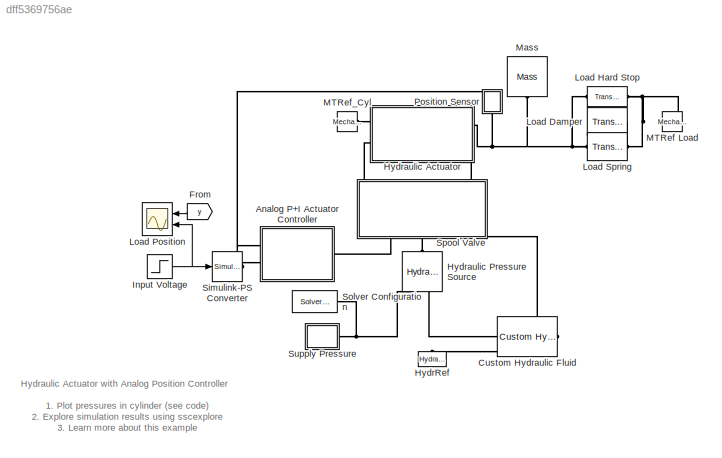
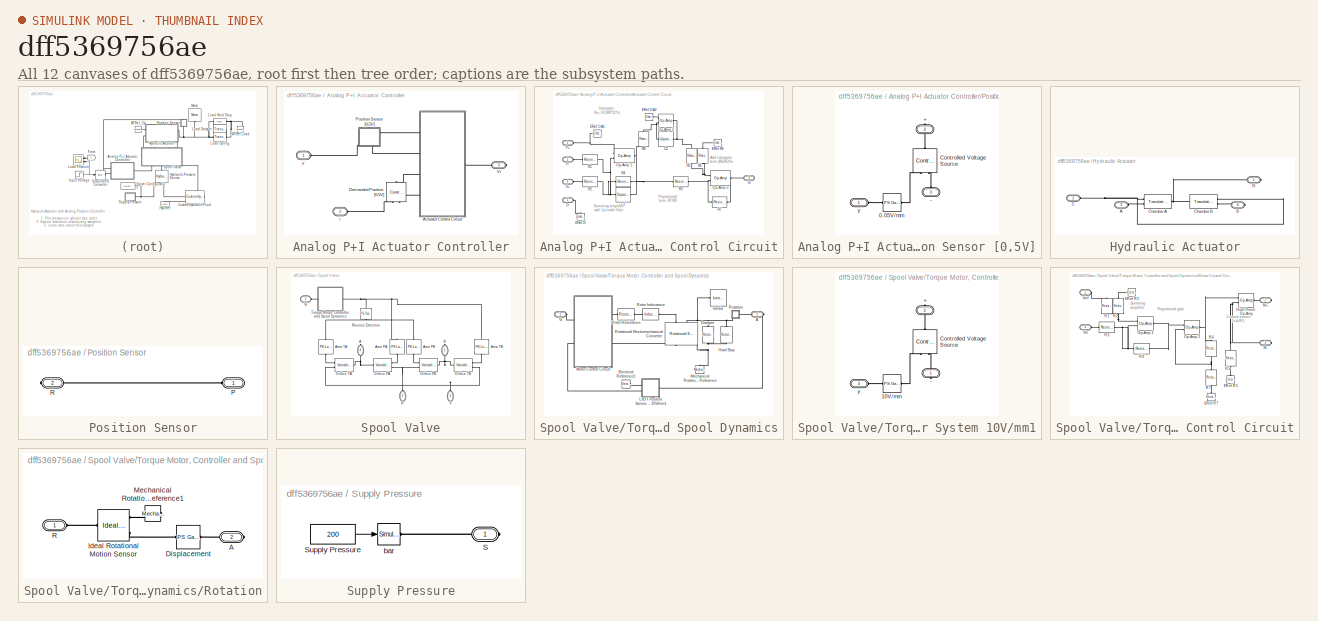
[diagram: thumbnail index - all 12 canvases of the model, root first then tree order]
MODEL slx_dff5369756ae
KIND model
CONFIG AbsTol = 1e-3
CONFIG EnableMultiTasking = on
CONFIG FixedStep = auto
CONFIG MaxStep = 0.02
CONFIG MinStep = auto
CONFIG RelTol = 1e-3
CONFIG SampleTimeConstraint = Unconstrained
CONFIG Solver = VariableStepAuto
CONFIG SolverName = VariableStepAuto
CONFIG StartTime = 0.0
CONFIG StopTime = 10
BLOCK [SubSystem] Analog P+I Actuator Controller
  NameLocation = top
  Ports = [0, 0, 0, 0, 0, 2, 1]
  RequestExecContextInheritance = off
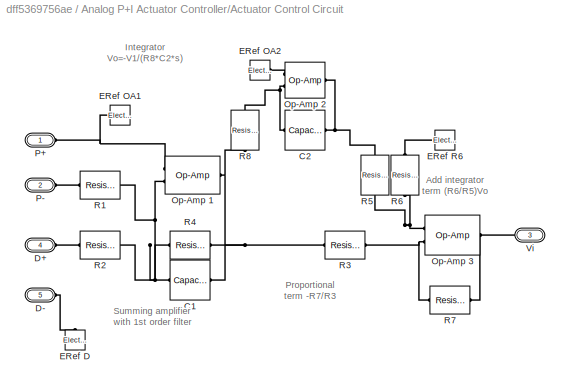
BLOCK [SubSystem] Analog P+I Actuator Controller/Actuator Control Circuit
  Ports = [0, 0, 0, 0, 0, 4, 1]
  RequestExecContextInheritance = off
  Tag = PublishSubsystem
BLOCK [Reference] Analog P+I Actuator Controller/Actuator Control Circuit/C1  REF=fl_lib/Electrical/Electrical Elements/Capacitor
  Ports = [0, 0, 0, 0, 0, 1, 1]
  SourceBlock = fl_lib/Electrical/Electrical Elements/Capacitor
  SourceProductName = Foundation Library
  SourceType = Capacitor
BLOCK [Reference] Analog P+I Actuator Controller/Actuator Control Circuit/C2  REF=fl_lib/Electrical/Electrical Elements/Capacitor
  Ports = [0, 0, 0, 0, 0, 1, 1]
  SourceBlock = fl_lib/Electrical/Electrical Elements/Capacitor
  SourceProductName = Foundation Library
  SourceType = Capacitor
BLOCK [PMIOPort] Analog P+I Actuator Controller/Actuator Control Circuit/D+
  Port = 4
  Side = Left
BLOCK [PMIOPort] Analog P+I Actuator Controller/Actuator Control Circuit/D-
  Port = 5
  Side = Left
BLOCK [Reference] Analog P+I Actuator Controller/Actuator Control Circuit/ERef D  REF=fl_lib/Electrical/Electrical Elements/Electrical Reference
  NameLocation = right
  Ports = [0, 0, 0, 0, 0, 1]
  SourceBlock = fl_lib/Electrical/Electrical Elements/Electrical Reference
  SourceProductName = Foundation Library
  SourceType = Electrical Reference
BLOCK [Reference] Analog P+I Actuator Controller/Actuator Control Circuit/ERef OA1  REF=fl_lib/Electrical/Electrical Elements/Electrical Reference
  NameLocation = top
  Ports = [0, 0, 0, 0, 0, 1]
  SourceBlock = fl_lib/Electrical/Electrical Elements/Electrical Reference
  SourceProductName = Foundation Library
  SourceType = Electrical Reference
BLOCK [Reference] Analog P+I Actuator Controller/Actuator Control Circuit/ERef OA2  REF=fl_lib/Electrical/Electrical Elements/Electrical Reference
  NameLocation = top
  Ports = [0, 0, 0, 0, 0, 1]
  SourceBlock = fl_lib/Electrical/Electrical Elements/Electrical Reference
  SourceProductName = Foundation Library
  SourceType = Electrical Reference
BLOCK [Reference] Analog P+I Actuator Controller/Actuator Control Circuit/ERef R6  REF=fl_lib/Electrical/Electrical Elements/Electrical Reference
  Ports = [0, 0, 0, 0, 0, 1]
  SourceBlock = fl_lib/Electrical/Electrical Elements/Electrical Reference
  SourceProductName = Foundation Library
  SourceType = Electrical Reference
BLOCK [Reference] Analog P+I Actuator Controller/Actuator Control Circuit/Op-Amp 1  REF=fl_lib/Electrical/Electrical Elements/Op-Amp
  Ports = [0, 0, 0, 0, 0, 2, 1]
  SourceBlock = fl_lib/Electrical/Electrical Elements/Op-Amp
  SourceProductName = Foundation Library
  SourceType = Op-Amp
BLOCK [Reference] Analog P+I Actuator Controller/Actuator Control Circuit/Op-Amp 2  REF=fl_lib/Electrical/Electrical Elements/Op-Amp
  NameLocation = top
  Ports = [0, 0, 0, 0, 0, 2, 1]
  SourceBlock = fl_lib/Electrical/Electrical Elements/Op-Amp
  SourceProductName = Foundation Library
  SourceType = Op-Amp
BLOCK [Reference] Analog P+I Actuator Controller/Actuator Control Circuit/Op-Amp 3  REF=fl_lib/Electrical/Electrical Elements/Op-Amp
  Ports = [0, 0, 0, 0, 0, 2, 1]
  SourceBlock = fl_lib/Electrical/Electrical Elements/Op-Amp
  SourceProductName = Foundation Library
  SourceType = Op-Amp
BLOCK [PMIOPort] Analog P+I Actuator Controller/Actuator Control Circuit/P+
  Side = Left
BLOCK [PMIOPort] Analog P+I Actuator Controller/Actuator Control Circuit/P-
  Port = 2
  Side = Left
BLOCK [Reference] Analog P+I Actuator Controller/Actuator Control Circuit/R1  REF=fl_lib/Electrical/Electrical Elements/Resistor
  Ports = [0, 0, 0, 0, 0, 1, 1]
  SourceBlock = fl_lib/Electrical/Electrical Elements/Resistor
  SourceProductName = Foundation Library
  SourceType = Resistor
BLOCK [Reference] Analog P+I Actuator Controller/Actuator Control Circuit/R2  REF=fl_lib/Electrical/Electrical Elements/Resistor
  Ports = [0, 0, 0, 0, 0, 1, 1]
  SourceBlock = fl_lib/Electrical/Electrical Elements/Resistor
  SourceProductName = Foundation Library
  SourceType = Resistor
BLOCK [Reference] Analog P+I Actuator Controller/Actuator Control Circuit/R3  REF=fl_lib/Electrical/Electrical Elements/Resistor
  Ports = [0, 0, 0, 0, 0, 1, 1]
  SourceBlock = fl_lib/Electrical/Electrical Elements/Resistor
  SourceProductName = Foundation Library
  SourceType = Resistor
BLOCK [Reference] Analog P+I Actuator Controller/Actuator Control Circuit/R4  REF=fl_lib/Electrical/Electrical Elements/Resistor
  Ports = [0, 0, 0, 0, 0, 1, 1]
  SourceBlock = fl_lib/Electrical/Electrical Elements/Resistor
  SourceProductName = Foundation Library
  SourceType = Resistor
BLOCK [Reference] Analog P+I Actuator Controller/Actuator Control Circuit/R5  REF=fl_lib/Electrical/Electrical Elements/Resistor
  NameLocation = left
  Ports = [0, 0, 0, 0, 0, 1, 1]
  SourceBlock = fl_lib/Electrical/Electrical Elements/Resistor
  SourceProductName = Foundation Library
  SourceType = Resistor
BLOCK [Reference] Analog P+I Actuator Controller/Actuator Control Circuit/R6  REF=fl_lib/Electrical/Electrical Elements/Resistor
  NameLocation = right
  Ports = [0, 0, 0, 0, 0, 1, 1]
  SourceBlock = fl_lib/Electrical/Electrical Elements/Resistor
  SourceProductName = Foundation Library
  SourceType = Resistor
BLOCK [Reference] Analog P+I Actuator Controller/Actuator Control Circuit/R7  REF=fl_lib/Electrical/Electrical Elements/Resistor
  Ports = [0, 0, 0, 0, 0, 1, 1]
  SourceBlock = fl_lib/Electrical/Electrical Elements/Resistor
  SourceProductName = Foundation Library
  SourceType = Resistor
BLOCK [Reference] Analog P+I Actuator Controller/Actuator Control Circuit/R8  REF=fl_lib/Electrical/Electrical Elements/Resistor
  NameLocation = left
  Ports = [0, 0, 0, 0, 0, 1, 1]
  SourceBlock = fl_lib/Electrical/Electrical Elements/Resistor
  SourceProductName = Foundation Library
  SourceType = Resistor
BLOCK [PMIOPort] Analog P+I Actuator Controller/Actuator Control Circuit/Vi
  Port = 3
  Side = Right
BLOCK [Reference] Analog P+I Actuator Controller/Demanded Position [0,5V]  REF=fl_lib/Electrical/Electrical Sources/Controlled Voltage
Source
  NameLocation = left
  Ports = [0, 0, 0, 0, 0, 1, 2]
  SourceBlock = fl_lib/Electrical/Electrical Sources/Controlled Voltage\nSource
  SourceProductName = Foundation Library
  SourceType = Controlled Voltage\nSource
BLOCK [SubSystem] Analog P+I Actuator Controller/Position Sensor [0,5V]
  NameLocation = left
  Ports = [0, 0, 0, 0, 0, 2, 1]
  RequestExecContextInheritance = off
BLOCK [PMIOPort] Analog P+I Actuator Controller/Position Sensor [0,5V]/+
  NameLocation = right
  Port = 2
  Side = Right
BLOCK [PMIOPort] Analog P+I Actuator Controller/Position Sensor [0,5V]/-
  NameLocation = right
  Port = 3
  Side = Left
BLOCK [Reference] Analog P+I Actuator Controller/Position Sensor [0,5V]/0.05V//mm  REF=fl_lib/Physical Signals/Functions/PS Gain
  Ports = [0, 0, 0, 0, 0, 1, 1]
  SourceBlock = fl_lib/Physical Signals/Functions/PS Gain
  SourceProductName = Foundation Library
  SourceType = PS Gain
BLOCK [Reference] Analog P+I Actuator Controller/Position Sensor [0,5V]/Controlled Voltage Source  REF=fl_lib/Electrical/Electrical Sources/Controlled Voltage
Source
  NameLocation = right
  Ports = [0, 0, 0, 0, 0, 1, 2]
  SourceBlock = fl_lib/Electrical/Electrical Sources/Controlled Voltage\nSource
  SourceProductName = Foundation Library
  SourceType = Controlled Voltage\nSource
BLOCK [PMIOPort] Analog P+I Actuator Controller/Position Sensor [0,5V]/y
  Side = Left
BLOCK [PMIOPort] Analog P+I Actuator Controller/Vi
  Port = 3
  Side = Right
BLOCK [PMIOPort] Analog P+I Actuator Controller/r
  Port = 2
  Side = Left
  Tag = PMCPort
BLOCK [PMIOPort] Analog P+I Actuator Controller/y
  Side = Left
  Tag = PMCPort
BLOCK [Reference] Custom Hydraulic Fluid  REF=fl_lib/Hydraulic/Hydraulic Utilities/Custom Hydraulic
Fluid
  NameLocation = top
  Ports = [0, 0, 0, 0, 0, 0, 1]
  SourceBlock = fl_lib/Hydraulic/Hydraulic Utilities/Custom Hydraulic\nFluid
  SourceProductName = Foundation Library
  SourceType = Custom Hydraulic\nFluid
BLOCK [From] From
  GotoTag = y
  NameLocation = top
  TagVisibility = global
BLOCK [Reference] HydrRef  REF=fl_lib/Hydraulic/Hydraulic Elements/Hydraulic Reference
  NameLocation = right
  Ports = [0, 0, 0, 0, 0, 1]
  SourceBlock = fl_lib/Hydraulic/Hydraulic Elements/Hydraulic Reference
  SourceProductName = Foundation Library
  SourceType = Hydraulic Reference
BLOCK [SubSystem] Hydraulic Actuator
  NameLocation = top
  Ports = [0, 0, 0, 0, 0, 2, 2]
  RequestExecContextInheritance = off
BLOCK [PMIOPort] Hydraulic Actuator/A
  Port = 3
  Side = Left
BLOCK [PMIOPort] Hydraulic Actuator/B
  Port = 4
  Side = Right
BLOCK [PMIOPort] Hydraulic Actuator/C
  NameLocation = top
  Port = 2
  Side = Left
BLOCK [Reference] Hydraulic Actuator/Chamber A  REF=fl_lib/Hydraulic/Hydraulic Elements/Translational
Hydro-Mechanical
Converter
  Ports = [0, 0, 0, 0, 0, 2, 1]
  SourceBlock = fl_lib/Hydraulic/Hydraulic Elements/Translational\nHydro-Mechanical\nConverter
  SourceProductName = Foundation Library
  SourceType = Translational\nHydro-Mechanical\nConverter
BLOCK [Reference] Hydraulic Actuator/Chamber B  REF=fl_lib/Hydraulic/Hydraulic Elements/Translational
Hydro-Mechanical
Converter
  Ports = [0, 0, 0, 0, 0, 2, 1]
  SourceBlock = fl_lib/Hydraulic/Hydraulic Elements/Translational\nHydro-Mechanical\nConverter
  SourceProductName = Foundation Library
  SourceType = Translational\nHydro-Mechanical\nConverter
BLOCK [PMIOPort] Hydraulic Actuator/R
  Side = Right
BLOCK [Reference] Hydraulic Pressure Source  REF=fl_lib/Hydraulic/Hydraulic Sources/Hydraulic Pressure
Source
  NameLocation = left
  Ports = [0, 0, 0, 0, 0, 1, 2]
  SourceBlock = fl_lib/Hydraulic/Hydraulic Sources/Hydraulic Pressure\nSource
  SourceProductName = Foundation Library
  SourceType = Hydraulic Pressure\nSource
BLOCK [Step] Input Voltage
  After = 3.0
  Before = 2.5
  SampleTime = 0
  Time = 0.2
BLOCK [Reference] Load Damper  REF=fl_lib/Mechanical/Translational
Elements/Translational Damper
  Ports = [0, 0, 0, 0, 0, 1, 1]
  SourceBlock = fl_lib/Mechanical/Translational\nElements/Translational Damper
  SourceProductName = Foundation Library
  SourceType = Translational Damper
BLOCK [Reference] Load Hard Stop  REF=fl_lib/Mechanical/Translational
Elements/Translational Hard
Stop
  NameLocation = top
  Ports = [0, 0, 0, 0, 0, 1, 1]
  SourceBlock = fl_lib/Mechanical/Translational\nElements/Translational Hard\nStop
  SourceProductName = Foundation Library
  SourceType = Translational Hard\nStop
BLOCK [Scope] Load Position
  Floating = off
  NameLocation = top
  NumInputPorts = 2
  Ports = [2]
  ScopeSpecificationString = Simulink.scopes.TimeScopeBlockCfg('CurrentConfiguration', extmgr.ConfigurationSet(extmgr.Configuration('Core','General UI',true,'FigureColor',[0.501960784313725 0.501960784313725 0.501960784313725]),extmgr.Configuration('Core','Source UI',true),extmgr.Configuration('Sources','WiredSimulink',true,'DataLoggingVariableName','ScopeData3','DataLoggingSaveFormat','Array','DataLoggingLimitDataPoints',tru...<+3857ch>
  Tag = PublishScope
BLOCK [Reference] Load Spring  REF=fl_lib/Mechanical/Translational
Elements/Translational Spring
  Ports = [0, 0, 0, 0, 0, 1, 1]
  SourceBlock = fl_lib/Mechanical/Translational\nElements/Translational Spring
  SourceProductName = Foundation Library
  SourceType = Translational Spring
BLOCK [Reference] MTRef Load  REF=fl_lib/Mechanical/Translational
Elements/Mechanical
Translational
Reference
  NameLocation = top
  Ports = [0, 0, 0, 0, 0, 1]
  SourceBlock = fl_lib/Mechanical/Translational\nElements/Mechanical\nTranslational\nReference
  SourceProductName = Foundation Library
  SourceType = Mechanical\nTranslational\nReference
BLOCK [Reference] MTRef_Cyl  REF=fl_lib/Mechanical/Translational
Elements/Mechanical
Translational
Reference
  Ports = [0, 0, 0, 0, 0, 1]
  SourceBlock = fl_lib/Mechanical/Translational\nElements/Mechanical\nTranslational\nReference
  SourceProductName = Foundation Library
  SourceType = Mechanical\nTranslational\nReference
BLOCK [Reference] Mass  REF=fl_lib/Mechanical/Translational
Elements/Mass
  NameLocation = right
  Ports = [0, 0, 0, 0, 0, 1]
  SourceBlock = fl_lib/Mechanical/Translational\nElements/Mass
  SourceProductName = Foundation Library
  SourceType = Mass
BLOCK [SubSystem] Position Sensor
  NameLocation = right
  Ports = [0, 0, 0, 0, 0, 1, 1]
  RequestExecContextInheritance = off
BLOCK [PMIOPort] Position Sensor/P
  NameLocation = top
  Side = Left
BLOCK [PMIOPort] Position Sensor/R
  Port = 2
  Side = Right
BLOCK [Reference] Simulink-PS Converter  REF=nesl_utility/Simulink-PS
Converter
  Ports = [1, 0, 0, 0, 0, 0, 1]
  SourceBlock = nesl_utility/Simulink-PS\nConverter
  SourceProductName = Utilities
  SourceType = Simulink-PS\nConverter
BLOCK [Reference] Solver Configuration  REF=nesl_utility/Solver
Configuration
  Ports = [0, 0, 0, 0, 0, 0, 1]
  SourceBlock = nesl_utility/Solver\nConfiguration
  SourceProductName = Utilities
  SourceType = Solver\nConfiguration
BLOCK [SubSystem] Spool Valve
  NameLocation = right
  Ports = [0, 0, 0, 0, 0, 3, 2]
  RequestExecContextInheritance = off
  Tag = PublishSubsystem
BLOCK [PMIOPort] Spool Valve/A
  NameLocation = right
  Port = 4
  Side = Right
  Tag = PMCPort
BLOCK [Reference] Spool Valve/Area PA  REF=fl_lib/Physical Signals/Lookup Tables/PS Lookup Table (1D)
  NameLocation = left
  Ports = [0, 0, 0, 0, 0, 1, 1]
  SourceBlock = fl_lib/Physical Signals/Lookup Tables/PS Lookup Table (1D)
  SourceProductName = Foundation Library
  SourceType = PS Lookup Table (1D)
BLOCK [Reference] Spool Valve/Area PB  REF=fl_lib/Physical Signals/Lookup Tables/PS Lookup Table (1D)
  NameLocation = right
  Ports = [0, 0, 0, 0, 0, 1, 1]
  SourceBlock = fl_lib/Physical Signals/Lookup Tables/PS Lookup Table (1D)
  SourceProductName = Foundation Library
  SourceType = PS Lookup Table (1D)
BLOCK [Reference] Spool Valve/Area TA  REF=fl_lib/Physical Signals/Lookup Tables/PS Lookup Table (1D)
  NameLocation = right
  Ports = [0, 0, 0, 0, 0, 1, 1]
  SourceBlock = fl_lib/Physical Signals/Lookup Tables/PS Lookup Table (1D)
  SourceProductName = Foundation Library
  SourceType = PS Lookup Table (1D)
BLOCK [Reference] Spool Valve/Area TB  REF=fl_lib/Physical Signals/Lookup Tables/PS Lookup Table (1D)
  NameLocation = left
  Ports = [0, 0, 0, 0, 0, 1, 1]
  SourceBlock = fl_lib/Physical Signals/Lookup Tables/PS Lookup Table (1D)
  SourceProductName = Foundation Library
  SourceType = PS Lookup Table (1D)
BLOCK [PMIOPort] Spool Valve/B
  NameLocation = right
  Port = 5
  Side = Right
  Tag = PMCPort
BLOCK [Reference] Spool Valve/Orifice PA  REF=fl_lib/Hydraulic/Hydraulic Elements/Variable Area
Hydraulic Orifice
  Ports = [0, 0, 0, 0, 0, 2, 1]
  SourceBlock = fl_lib/Hydraulic/Hydraulic Elements/Variable Area\nHydraulic Orifice
  SourceProductName = Foundation Library
  SourceType = Variable Area\nHydraulic Orifice
BLOCK [Reference] Spool Valve/Orifice PB  REF=fl_lib/Hydraulic/Hydraulic Elements/Variable Area
Hydraulic Orifice
  Ports = [0, 0, 0, 0, 0, 2, 1]
  SourceBlock = fl_lib/Hydraulic/Hydraulic Elements/Variable Area\nHydraulic Orifice
  SourceProductName = Foundation Library
  SourceType = Variable Area\nHydraulic Orifice
BLOCK [Reference] Spool Valve/Orifice TA  REF=fl_lib/Hydraulic/Hydraulic Elements/Variable Area
Hydraulic Orifice
  Ports = [0, 0, 0, 0, 0, 2, 1]
  SourceBlock = fl_lib/Hydraulic/Hydraulic Elements/Variable Area\nHydraulic Orifice
  SourceProductName = Foundation Library
  SourceType = Variable Area\nHydraulic Orifice
BLOCK [Reference] Spool Valve/Orifice TB  REF=fl_lib/Hydraulic/Hydraulic Elements/Variable Area
Hydraulic Orifice
  Ports = [0, 0, 0, 0, 0, 2, 1]
  SourceBlock = fl_lib/Hydraulic/Hydraulic Elements/Variable Area\nHydraulic Orifice
  SourceProductName = Foundation Library
  SourceType = Variable Area\nHydraulic Orifice
BLOCK [PMIOPort] Spool Valve/P
  NameLocation = right
  Port = 2
  Side = Left
  Tag = PMCPort
BLOCK [Reference] Spool Valve/Reverse Direction  REF=fl_lib/Physical Signals/Functions/PS Gain
  NameLocation = right
  Ports = [0, 0, 0, 0, 0, 1, 1]
  SourceBlock = fl_lib/Physical Signals/Functions/PS Gain
  SourceProductName = Foundation Library
  SourceType = PS Gain
BLOCK [PMIOPort] Spool Valve/T
  NameLocation = right
  Port = 3
  Side = Left
  Tag = PMCPort
BLOCK [SubSystem] Spool Valve/Torque Motor, Controller and Spool Dynamics
  Ports = [0, 0, 0, 0, 0, 1, 1]
  RequestExecContextInheritance = off
BLOCK [PMIOPort] Spool Valve/Torque Motor, Controller and Spool Dynamics/A
  Port = 2
  Side = Right
BLOCK [Reference] Spool Valve/Torque Motor, Controller and Spool Dynamics/Damper  REF=fl_lib/Mechanical/Rotational Elements/Rotational Damper
  NameLocation = right
  Ports = [0, 0, 0, 0, 0, 1, 1]
  SourceBlock = fl_lib/Mechanical/Rotational Elements/Rotational Damper
  SourceProductName = Foundation Library
  SourceType = Rotational Damper
BLOCK [Reference] Spool Valve/Torque Motor, Controller and Spool Dynamics/Electrical Reference1  REF=fl_lib/Electrical/Electrical Elements/Electrical Reference
  NameLocation = top
  Ports = [0, 0, 0, 0, 0, 1]
  SourceBlock = fl_lib/Electrical/Electrical Elements/Electrical Reference
  SourceProductName = Foundation Library
  SourceType = Electrical Reference
BLOCK [Reference] Spool Valve/Torque Motor, Controller and Spool Dynamics/Hard Stop  REF=fl_lib/Mechanical/Rotational Elements/Rotational Hard Stop
  NameLocation = right
  Ports = [0, 0, 0, 0, 0, 1, 1]
  SourceBlock = fl_lib/Mechanical/Rotational Elements/Rotational Hard Stop
  SourceProductName = Foundation Library
  SourceType = Rotational Hard Stop
BLOCK [Reference] Spool Valve/Torque Motor, Controller and Spool Dynamics/Inertia  REF=fl_lib/Mechanical/Rotational Elements/Inertia
  Ports = [0, 0, 0, 0, 0, 1]
  SourceBlock = fl_lib/Mechanical/Rotational Elements/Inertia
  SourceProductName = Foundation Library
  SourceType = Inertia
BLOCK [SubSystem] Spool Valve/Torque Motor, Controller and Spool Dynamics/LVDT Position Sensor System 10V//mm1
  Ports = [0, 0, 0, 0, 0, 1, 2]
  RequestExecContextInheritance = off
BLOCK [PMIOPort] Spool Valve/Torque Motor, Controller and Spool Dynamics/LVDT Position Sensor System 10V//mm1/+
  NameLocation = right
  Port = 2
  Side = Right
BLOCK [PMIOPort] Spool Valve/Torque Motor, Controller and Spool Dynamics/LVDT Position Sensor System 10V//mm1/-
  NameLocation = right
  Side = Right
BLOCK [Reference] Spool Valve/Torque Motor, Controller and Spool Dynamics/LVDT Position Sensor System 10V//mm1/10V//mm  REF=fl_lib/Physical Signals/Functions/PS Gain
  Ports = [0, 0, 0, 0, 0, 1, 1]
  SourceBlock = fl_lib/Physical Signals/Functions/PS Gain
  SourceProductName = Foundation Library
  SourceType = PS Gain
BLOCK [Reference] Spool Valve/Torque Motor, Controller and Spool Dynamics/LVDT Position Sensor System 10V//mm1/Controlled Voltage Source  REF=fl_lib/Electrical/Electrical Sources/Controlled Voltage
Source
  NameLocation = right
  Ports = [0, 0, 0, 0, 0, 1, 2]
  SourceBlock = fl_lib/Electrical/Electrical Sources/Controlled Voltage\nSource
  SourceProductName = Foundation Library
  SourceType = Controlled Voltage\nSource
BLOCK [PMIOPort] Spool Valve/Torque Motor, Controller and Spool Dynamics/LVDT Position Sensor System 10V//mm1/y
  Port = 3
  Side = Left
BLOCK [Reference] Spool Valve/Torque Motor, Controller and Spool Dynamics/Mechanical Rotational Reference  REF=fl_lib/Mechanical/Rotational Elements/Mechanical
Rotational Reference
  NameLocation = right
  Ports = [0, 0, 0, 0, 0, 1]
  SourceBlock = fl_lib/Mechanical/Rotational Elements/Mechanical\nRotational Reference
  SourceProductName = Foundation Library
  SourceType = Mechanical\nRotational Reference
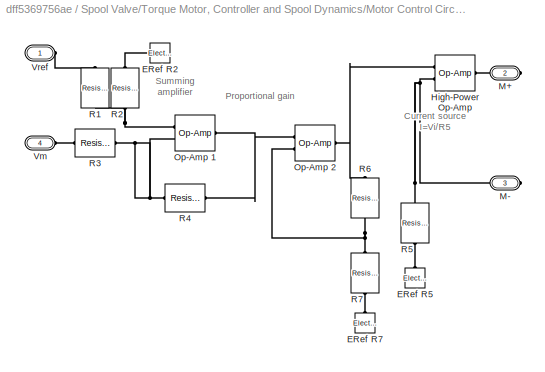
BLOCK [SubSystem] Spool Valve/Torque Motor, Controller and Spool Dynamics/Motor Control Circuit
  Ports = [0, 0, 0, 0, 0, 2, 2]
  RequestExecContextInheritance = off
  Tag = PublishSubsystem
BLOCK [Reference] Spool Valve/Torque Motor, Controller and Spool Dynamics/Motor Control Circuit/ERef R2  REF=fl_lib/Electrical/Electrical Elements/Electrical Reference
  NameLocation = top
  Ports = [0, 0, 0, 0, 0, 1]
  SourceBlock = fl_lib/Electrical/Electrical Elements/Electrical Reference
  SourceProductName = Foundation Library
  SourceType = Electrical Reference
BLOCK [Reference] Spool Valve/Torque Motor, Controller and Spool Dynamics/Motor Control Circuit/ERef R5  REF=fl_lib/Electrical/Electrical Elements/Electrical Reference
  NameLocation = right
  Ports = [0, 0, 0, 0, 0, 1]
  SourceBlock = fl_lib/Electrical/Electrical Elements/Electrical Reference
  SourceProductName = Foundation Library
  SourceType = Electrical Reference
BLOCK [Reference] Spool Valve/Torque Motor, Controller and Spool Dynamics/Motor Control Circuit/ERef R7  REF=fl_lib/Electrical/Electrical Elements/Electrical Reference
  NameLocation = left
  Ports = [0, 0, 0, 0, 0, 1]
  SourceBlock = fl_lib/Electrical/Electrical Elements/Electrical Reference
  SourceProductName = Foundation Library
  SourceType = Electrical Reference
BLOCK [Reference] Spool Valve/Torque Motor, Controller and Spool Dynamics/Motor Control Circuit/High-Power Op-Amp  REF=fl_lib/Electrical/Electrical Elements/Op-Amp
  NameLocation = top
  Ports = [0, 0, 0, 0, 0, 2, 1]
  SourceBlock = fl_lib/Electrical/Electrical Elements/Op-Amp
  SourceProductName = Foundation Library
  SourceType = Op-Amp
BLOCK [PMIOPort] Spool Valve/Torque Motor, Controller and Spool Dynamics/Motor Control Circuit/M+
  Port = 2
  Side = Right
BLOCK [PMIOPort] Spool Valve/Torque Motor, Controller and Spool Dynamics/Motor Control Circuit/M-
  Port = 3
  Side = Right
BLOCK [Reference] Spool Valve/Torque Motor, Controller and Spool Dynamics/Motor Control Circuit/Op-Amp 1  REF=fl_lib/Electrical/Electrical Elements/Op-Amp
  Ports = [0, 0, 0, 0, 0, 2, 1]
  SourceBlock = fl_lib/Electrical/Electrical Elements/Op-Amp
  SourceProductName = Foundation Library
  SourceType = Op-Amp
BLOCK [Reference] Spool Valve/Torque Motor, Controller and Spool Dynamics/Motor Control Circuit/Op-Amp 2  REF=fl_lib/Electrical/Electrical Elements/Op-Amp
  Ports = [0, 0, 0, 0, 0, 2, 1]
  SourceBlock = fl_lib/Electrical/Electrical Elements/Op-Amp
  SourceProductName = Foundation Library
  SourceType = Op-Amp
BLOCK [Reference] Spool Valve/Torque Motor, Controller and Spool Dynamics/Motor Control Circuit/R1  REF=fl_lib/Electrical/Electrical Elements/Resistor
  NameLocation = left
  Ports = [0, 0, 0, 0, 0, 1, 1]
  SourceBlock = fl_lib/Electrical/Electrical Elements/Resistor
  SourceProductName = Foundation Library
  SourceType = Resistor
BLOCK [Reference] Spool Valve/Torque Motor, Controller and Spool Dynamics/Motor Control Circuit/R2  REF=fl_lib/Electrical/Electrical Elements/Resistor
  NameLocation = right
  Ports = [0, 0, 0, 0, 0, 1, 1]
  SourceBlock = fl_lib/Electrical/Electrical Elements/Resistor
  SourceProductName = Foundation Library
  SourceType = Resistor
BLOCK [Reference] Spool Valve/Torque Motor, Controller and Spool Dynamics/Motor Control Circuit/R3  REF=fl_lib/Electrical/Electrical Elements/Resistor
  Ports = [0, 0, 0, 0, 0, 1, 1]
  SourceBlock = fl_lib/Electrical/Electrical Elements/Resistor
  SourceProductName = Foundation Library
  SourceType = Resistor
BLOCK [Reference] Spool Valve/Torque Motor, Controller and Spool Dynamics/Motor Control Circuit/R4  REF=fl_lib/Electrical/Electrical Elements/Resistor
  Ports = [0, 0, 0, 0, 0, 1, 1]
  SourceBlock = fl_lib/Electrical/Electrical Elements/Resistor
  SourceProductName = Foundation Library
  SourceType = Resistor
BLOCK [Reference] Spool Valve/Torque Motor, Controller and Spool Dynamics/Motor Control Circuit/R5  REF=fl_lib/Electrical/Electrical Elements/Resistor
  NameLocation = right
  Ports = [0, 0, 0, 0, 0, 1, 1]
  SourceBlock = fl_lib/Electrical/Electrical Elements/Resistor
  SourceProductName = Foundation Library
  SourceType = Resistor
BLOCK [Reference] Spool Valve/Torque Motor, Controller and Spool Dynamics/Motor Control Circuit/R6  REF=fl_lib/Electrical/Electrical Elements/Resistor
  NameLocation = left
  Ports = [0, 0, 0, 0, 0, 1, 1]
  SourceBlock = fl_lib/Electrical/Electrical Elements/Resistor
  SourceProductName = Foundation Library
  SourceType = Resistor
BLOCK [Reference] Spool Valve/Torque Motor, Controller and Spool Dynamics/Motor Control Circuit/R7  REF=fl_lib/Electrical/Electrical Elements/Resistor
  NameLocation = left
  Ports = [0, 0, 0, 0, 0, 1, 1]
  SourceBlock = fl_lib/Electrical/Electrical Elements/Resistor
  SourceProductName = Foundation Library
  SourceType = Resistor
BLOCK [PMIOPort] Spool Valve/Torque Motor, Controller and Spool Dynamics/Motor Control Circuit/Vm
  Port = 4
  Side = Left
BLOCK [PMIOPort] Spool Valve/Torque Motor, Controller and Spool Dynamics/Motor Control Circuit/Vref
  Side = Left
BLOCK [SubSystem] Spool Valve/Torque Motor, Controller and Spool Dynamics/Rotation
  Ports = [0, 0, 0, 0, 0, 1, 1]
  RequestExecContextInheritance = off
BLOCK [PMIOPort] Spool Valve/Torque Motor, Controller and Spool Dynamics/Rotation/A
  Port = 2
  Side = Right
BLOCK [Reference] Spool Valve/Torque Motor, Controller and Spool Dynamics/Rotation/Displacement  REF=fl_lib/Physical Signals/Functions/PS Gain
  Ports = [0, 0, 0, 0, 0, 1, 1]
  SourceBlock = fl_lib/Physical Signals/Functions/PS Gain
  SourceProductName = Foundation Library
  SourceType = PS Gain
BLOCK [Reference] Spool Valve/Torque Motor, Controller and Spool Dynamics/Rotation/Ideal Rotational Motion Sensor  REF=fl_lib/Mechanical/Mechanical Sensors/Ideal Rotational
Motion Sensor
  Ports = [0, 0, 0, 0, 0, 1, 3]
  SourceBlock = fl_lib/Mechanical/Mechanical Sensors/Ideal Rotational\nMotion Sensor
  SourceProductName = Foundation Library
  SourceType = Ideal Rotational\nMotion Sensor
BLOCK [Reference] Spool Valve/Torque Motor, Controller and Spool Dynamics/Rotation/Mechanical Rotational Reference1  REF=fl_lib/Mechanical/Rotational Elements/Mechanical
Rotational Reference
  NameLocation = top
  Ports = [0, 0, 0, 0, 0, 1]
  SourceBlock = fl_lib/Mechanical/Rotational Elements/Mechanical\nRotational Reference
  SourceProductName = Foundation Library
  SourceType = Mechanical\nRotational Reference
BLOCK [PMIOPort] Spool Valve/Torque Motor, Controller and Spool Dynamics/Rotation/R
  Side = Left
BLOCK [Reference] Spool Valve/Torque Motor, Controller and Spool Dynamics/Rotational Electromechanical Converter  REF=fl_lib/Electrical/Electrical Elements/Rotational
Electromechanical
Converter
  NameLocation = left
  Ports = [0, 0, 0, 0, 0, 2, 2]
  SourceBlock = fl_lib/Electrical/Electrical Elements/Rotational\nElectromechanical\nConverter
  SourceProductName = Foundation Library
  SourceType = Rotational\nElectromechanical\nConverter
BLOCK [Reference] Spool Valve/Torque Motor, Controller and Spool Dynamics/Rotor Inductance  REF=fl_lib/Electrical/Electrical Elements/Inductor
  Ports = [0, 0, 0, 0, 0, 1, 1]
  SourceBlock = fl_lib/Electrical/Electrical Elements/Inductor
  SourceProductName = Foundation Library
  SourceType = Inductor
BLOCK [Reference] Spool Valve/Torque Motor, Controller and Spool Dynamics/Rotor Resistance  REF=fl_lib/Electrical/Electrical Elements/Resistor
  Ports = [0, 0, 0, 0, 0, 1, 1]
  SourceBlock = fl_lib/Electrical/Electrical Elements/Resistor
  SourceProductName = Foundation Library
  SourceType = Resistor
  Tag = Factory Generic
BLOCK [PMIOPort] Spool Valve/Torque Motor, Controller and Spool Dynamics/Vi
  Side = Left
BLOCK [PMIOPort] Spool Valve/Vi
  Side = Left
  Tag = PMCPort
BLOCK [SubSystem] Supply Pressure
  Ports = [0, 0, 0, 0, 0, 0, 1]
  RequestExecContextInheritance = off
BLOCK [PMIOPort] Supply Pressure/S
  Side = Right
BLOCK [Constant] Supply Pressure/Supply Pressure
  Value = 200
BLOCK [Reference] Supply Pressure/bar  REF=nesl_utility/Simulink-PS
Converter
  Ports = [1, 0, 0, 0, 0, 0, 1]
  SourceBlock = nesl_utility/Simulink-PS\nConverter
  SourceProductName = Utilities
  SourceType = Simulink-PS\nConverter
ANNOTATION (root): 1. Plot pressures in cylinder ( see code ) 2. Explore simulation results using sscexplore 3. Learn more about this example
ANNOTATION (root): Hydraulic Actuator with Analog Position Controller
ANNOTATION Analog P+I Actuator Controller/Actuator Control Circuit: Add integrator term (R6/R5)Vo
ANNOTATION Analog P+I Actuator Controller/Actuator Control Circuit: Integrator Vo=-V1/(R8*C2*s)
ANNOTATION Analog P+I Actuator Controller/Actuator Control Circuit: Proportional term -R7/R3
ANNOTATION Analog P+I Actuator Controller/Actuator Control Circuit: Summing amplifier with 1st order filter
ANNOTATION Spool Valve/Torque Motor, Controller and Spool Dynamics/Motor Control Circuit: Current source I=Vi/R5
ANNOTATION Spool Valve/Torque Motor, Controller and Spool Dynamics/Motor Control Circuit: Proportional gain
ANNOTATION Spool Valve/Torque Motor, Controller and Spool Dynamics/Motor Control Circuit: Summing amplifier
LINE From:1 -> Load Position:1
NET Input Voltage:1 -> Load Position:2, Simulink-PS Converter:1
LINE Supply Pressure/Supply Pressure:1 -> Supply Pressure/bar:1
PNET net1: Analog P+I Actuator Controller/Actuator Control Circuit/C1:LConn1 -- Analog P+I Actuator Controller/Actuator Control Circuit/Op-Amp 1:LConn2 -- Analog P+I Actuator Controller/Actuator Control Circuit/R1:RConn1 -- Analog P+I Actuator Controller/Actuator Control Circuit/R2:RConn1 -- Analog P+I Actuator Controller/Actuator Control Circuit/R4:LConn1
PNET net2: Analog P+I Actuator Controller/Actuator Control Circuit/C1:RConn1 -- Analog P+I Actuator Controller/Actuator Control Circuit/Op-Amp 1:RConn1 -- Analog P+I Actuator Controller/Actuator Control Circuit/R3:LConn1 -- Analog P+I Actuator Controller/Actuator Control Circuit/R4:RConn1 -- Analog P+I Actuator Controller/Actuator Control Circuit/R8:LConn1
PNET net3: Analog P+I Actuator Controller/Actuator Control Circuit/C2:LConn1 -- Analog P+I Actuator Controller/Actuator Control Circuit/Op-Amp 2:LConn2 -- Analog P+I Actuator Controller/Actuator Control Circuit/R8:RConn1
PNET net4: Analog P+I Actuator Controller/Actuator Control Circuit/C2:RConn1 -- Analog P+I Actuator Controller/Actuator Control Circuit/Op-Amp 2:RConn1 -- Analog P+I Actuator Controller/Actuator Control Circuit/R5:LConn1
PLINE Analog P+I Actuator Controller/Actuator Control Circuit/D+:RConn1 -- Analog P+I Actuator Controller/Actuator Control Circuit/R2:LConn1
PLINE Analog P+I Actuator Controller/Actuator Control Circuit/D-:RConn1 -- Analog P+I Actuator Controller/Actuator Control Circuit/ERef D:LConn1
PNET net5: Analog P+I Actuator Controller/Actuator Control Circuit/ERef OA1:LConn1 -- Analog P+I Actuator Controller/Actuator Control Circuit/Op-Amp 1:LConn1 -- Analog P+I Actuator Controller/Actuator Control Circuit/P+:RConn1
PLINE Analog P+I Actuator Controller/Actuator Control Circuit/ERef OA2:LConn1 -- Analog P+I Actuator Controller/Actuator Control Circuit/Op-Amp 2:LConn1
PLINE Analog P+I Actuator Controller/Actuator Control Circuit/ERef R6:LConn1 -- Analog P+I Actuator Controller/Actuator Control Circuit/R6:RConn1
PNET net6: Analog P+I Actuator Controller/Actuator Control Circuit/Op-Amp 3:LConn1 -- Analog P+I Actuator Controller/Actuator Control Circuit/R5:RConn1 -- Analog P+I Actuator Controller/Actuator Control Circuit/R6:LConn1
PNET net7: Analog P+I Actuator Controller/Actuator Control Circuit/Op-Amp 3:LConn2 -- Analog P+I Actuator Controller/Actuator Control Circuit/R3:RConn1 -- Analog P+I Actuator Controller/Actuator Control Circuit/R7:LConn1
PNET net8: Analog P+I Actuator Controller/Actuator Control Circuit/Op-Amp 3:RConn1 -- Analog P+I Actuator Controller/Actuator Control Circuit/R7:RConn1 -- Analog P+I Actuator Controller/Actuator Control Circuit/Vi:RConn1
PLINE Analog P+I Actuator Controller/Actuator Control Circuit/P-:RConn1 -- Analog P+I Actuator Controller/Actuator Control Circuit/R1:LConn1
PLINE Analog P+I Actuator Controller/Actuator Control Circuit:LConn1 -- Analog P+I Actuator Controller/Position Sensor [0,5V]:RConn1
PLINE Analog P+I Actuator Controller/Actuator Control Circuit:LConn2 -- Analog P+I Actuator Controller/Position Sensor [0,5V]:LConn2
PLINE Analog P+I Actuator Controller/Actuator Control Circuit:LConn3 -- Analog P+I Actuator Controller/Demanded Position [0,5V]:LConn1
PLINE Analog P+I Actuator Controller/Actuator Control Circuit:LConn4 -- Analog P+I Actuator Controller/Demanded Position [0,5V]:RConn2
PLINE Analog P+I Actuator Controller/Actuator Control Circuit:RConn1 -- Analog P+I Actuator Controller/Vi:RConn1
PLINE Analog P+I Actuator Controller/Demanded Position [0,5V]:RConn1 -- Analog P+I Actuator Controller/r:RConn1
PLINE Analog P+I Actuator Controller/Position Sensor [0,5V]/+:RConn1 -- Analog P+I Actuator Controller/Position Sensor [0,5V]/Controlled Voltage Source:LConn1
PLINE Analog P+I Actuator Controller/Position Sensor [0,5V]/-:RConn1 -- Analog P+I Actuator Controller/Position Sensor [0,5V]/Controlled Voltage Source:RConn2
PLINE Analog P+I Actuator Controller/Position Sensor [0,5V]/0.05V//mm:LConn1 -- Analog P+I Actuator Controller/Position Sensor [0,5V]/y:RConn1
PLINE Analog P+I Actuator Controller/Position Sensor [0,5V]/0.05V//mm:RConn1 -- Analog P+I Actuator Controller/Position Sensor [0,5V]/Controlled Voltage Source:RConn1
PLINE Analog P+I Actuator Controller/Position Sensor [0,5V]:LConn1 -- Analog P+I Actuator Controller/y:RConn1
PLINE Analog P+I Actuator Controller:LConn1 -- Position Sensor:LConn1
PLINE Analog P+I Actuator Controller:LConn2 -- Simulink-PS Converter:RConn1
PLINE Analog P+I Actuator Controller:RConn1 -- Spool Valve:LConn1
PNET net9: Custom Hydraulic Fluid:RConn1 -- HydrRef:LConn1 -- Hydraulic Pressure Source:RConn2 -- Spool Valve:LConn3
PLINE Hydraulic Actuator/A:RConn1 -- Hydraulic Actuator/Chamber A:LConn2
PLINE Hydraulic Actuator/B:RConn1 -- Hydraulic Actuator/Chamber B:LConn2
PNET net10: Hydraulic Actuator/C:RConn1 -- Hydraulic Actuator/Chamber A:LConn1 -- Hydraulic Actuator/Chamber B:LConn1
PNET net11: Hydraulic Actuator/Chamber A:RConn1 -- Hydraulic Actuator/Chamber B:RConn1 -- Hydraulic Actuator/R:RConn1
PLINE Hydraulic Actuator:LConn1 -- MTRef_Cyl:LConn1
PLINE Hydraulic Actuator:LConn2 -- Spool Valve:RConn1
PNET net12: Hydraulic Actuator:RConn1 -- Load Damper:LConn1 -- Load Hard Stop:LConn1 -- Load Spring:LConn1 -- Mass:LConn1 -- Position Sensor:RConn1
PLINE Hydraulic Actuator:RConn2 -- Spool Valve:RConn2
PLINE Hydraulic Pressure Source:LConn1 -- Spool Valve:LConn2
PNET net13: Hydraulic Pressure Source:RConn1 -- Solver Configuration:RConn1 -- Supply Pressure:RConn1
PNET net14: Load Damper:RConn1 -- Load Hard Stop:RConn1 -- Load Spring:RConn1 -- MTRef Load:LConn1
PLINE Position Sensor/P:RConn1 -- Position Sensor/R:RConn1
PNET net15: Spool Valve/A:RConn1 -- Spool Valve/Orifice PA:RConn1 -- Spool Valve/Orifice TA:RConn1
PNET net16: Spool Valve/Area PA:LConn1 -- Spool Valve/Area TB:LConn1 -- Spool Valve/Reverse Direction:LConn1 -- Spool Valve/Torque Motor, Controller and Spool Dynamics:RConn1
PLINE Spool Valve/Area PA:RConn1 -- Spool Valve/Orifice PA:LConn1
PNET net17: Spool Valve/Area PB:LConn1 -- Spool Valve/Area TA:LConn1 -- Spool Valve/Reverse Direction:RConn1
PLINE Spool Valve/Area PB:RConn1 -- Spool Valve/Orifice PB:LConn1
PLINE Spool Valve/Area TA:RConn1 -- Spool Valve/Orifice TA:LConn1
PLINE Spool Valve/Area TB:RConn1 -- Spool Valve/Orifice TB:LConn1
PNET net18: Spool Valve/B:RConn1 -- Spool Valve/Orifice PB:RConn1 -- Spool Valve/Orifice TB:RConn1
PNET net19: Spool Valve/Orifice PA:LConn2 -- Spool Valve/Orifice PB:LConn2 -- Spool Valve/P:RConn1
PNET net20: Spool Valve/Orifice TA:LConn2 -- Spool Valve/Orifice TB:LConn2 -- Spool Valve/T:RConn1
PNET net21: Spool Valve/Torque Motor, Controller and Spool Dynamics/A:RConn1 -- Spool Valve/Torque Motor, Controller and Spool Dynamics/LVDT Position Sensor System 10V//mm1:LConn1 -- Spool Valve/Torque Motor, Controller and Spool Dynamics/Rotation:RConn1
PNET net22: Spool Valve/Torque Motor, Controller and Spool Dynamics/Damper:LConn1 -- Spool Valve/Torque Motor, Controller and Spool Dynamics/Hard Stop:LConn1 -- Spool Valve/Torque Motor, Controller and Spool Dynamics/Inertia:LConn1 -- Spool Valve/Torque Motor, Controller and Spool Dynamics/Rotation:LConn1 -- Spool Valve/Torque Motor, Controller and Spool Dynamics/Rotational Electromechanical Converter:LConn2
PNET net23: Spool Valve/Torque Motor, Controller and Spool Dynamics/Damper:RConn1 -- Spool Valve/Torque Motor, Controller and Spool Dynamics/Hard Stop:RConn1 -- Spool Valve/Torque Motor, Controller and Spool Dynamics/Mechanical Rotational Reference:LConn1 -- Spool Valve/Torque Motor, Controller and Spool Dynamics/Rotational Electromechanical Converter:RConn2
PLINE Spool Valve/Torque Motor, Controller and Spool Dynamics/Electrical Reference1:LConn1 -- Spool Valve/Torque Motor, Controller and Spool Dynamics/LVDT Position Sensor System 10V//mm1:RConn1
PLINE Spool Valve/Torque Motor, Controller and Spool Dynamics/LVDT Position Sensor System 10V//mm1/+:RConn1 -- Spool Valve/Torque Motor, Controller and Spool Dynamics/LVDT Position Sensor System 10V//mm1/Controlled Voltage Source:LConn1
PLINE Spool Valve/Torque Motor, Controller and Spool Dynamics/LVDT Position Sensor System 10V//mm1/-:RConn1 -- Spool Valve/Torque Motor, Controller and Spool Dynamics/LVDT Position Sensor System 10V//mm1/Controlled Voltage Source:RConn2
PLINE Spool Valve/Torque Motor, Controller and Spool Dynamics/LVDT Position Sensor System 10V//mm1/10V//mm:LConn1 -- Spool Valve/Torque Motor, Controller and Spool Dynamics/LVDT Position Sensor System 10V//mm1/y:RConn1
PLINE Spool Valve/Torque Motor, Controller and Spool Dynamics/LVDT Position Sensor System 10V//mm1/10V//mm:RConn1 -- Spool Valve/Torque Motor, Controller and Spool Dynamics/LVDT Position Sensor System 10V//mm1/Controlled Voltage Source:RConn1
PLINE Spool Valve/Torque Motor, Controller and Spool Dynamics/LVDT Position Sensor System 10V//mm1:RConn2 -- Spool Valve/Torque Motor, Controller and Spool Dynamics/Motor Control Circuit:LConn2
PLINE Spool Valve/Torque Motor, Controller and Spool Dynamics/Motor Control Circuit/ERef R2:LConn1 -- Spool Valve/Torque Motor, Controller and Spool Dynamics/Motor Control Circuit/R2:RConn1
PLINE Spool Valve/Torque Motor, Controller and Spool Dynamics/Motor Control Circuit/ERef R5:LConn1 -- Spool Valve/Torque Motor, Controller and Spool Dynamics/Motor Control Circuit/R5:RConn1
PLINE Spool Valve/Torque Motor, Controller and Spool Dynamics/Motor Control Circuit/ERef R7:LConn1 -- Spool Valve/Torque Motor, Controller and Spool Dynamics/Motor Control Circuit/R7:RConn1
PNET net24: Spool Valve/Torque Motor, Controller and Spool Dynamics/Motor Control Circuit/High-Power Op-Amp:LConn1 -- Spool Valve/Torque Motor, Controller and Spool Dynamics/Motor Control Circuit/Op-Amp 2:RConn1 -- Spool Valve/Torque Motor, Controller and Spool Dynamics/Motor Control Circuit/R6:LConn1
PNET net25: Spool Valve/Torque Motor, Controller and Spool Dynamics/Motor Control Circuit/High-Power Op-Amp:LConn2 -- Spool Valve/Torque Motor, Controller and Spool Dynamics/Motor Control Circuit/M-:RConn1 -- Spool Valve/Torque Motor, Controller and Spool Dynamics/Motor Control Circuit/R5:LConn1
PLINE Spool Valve/Torque Motor, Controller and Spool Dynamics/Motor Control Circuit/High-Power Op-Amp:RConn1 -- Spool Valve/Torque Motor, Controller and Spool Dynamics/Motor Control Circuit/M+:RConn1
PNET net26: Spool Valve/Torque Motor, Controller and Spool Dynamics/Motor Control Circuit/Op-Amp 1:LConn1 -- Spool Valve/Torque Motor, Controller and Spool Dynamics/Motor Control Circuit/R1:RConn1 -- Spool Valve/Torque Motor, Controller and Spool Dynamics/Motor Control Circuit/R2:LConn1
PNET net27: Spool Valve/Torque Motor, Controller and Spool Dynamics/Motor Control Circuit/Op-Amp 1:LConn2 -- Spool Valve/Torque Motor, Controller and Spool Dynamics/Motor Control Circuit/R3:RConn1 -- Spool Valve/Torque Motor, Controller and Spool Dynamics/Motor Control Circuit/R4:LConn1
PNET net28: Spool Valve/Torque Motor, Controller and Spool Dynamics/Motor Control Circuit/Op-Amp 1:RConn1 -- Spool Valve/Torque Motor, Controller and Spool Dynamics/Motor Control Circuit/Op-Amp 2:LConn1 -- Spool Valve/Torque Motor, Controller and Spool Dynamics/Motor Control Circuit/R4:RConn1
PNET net29: Spool Valve/Torque Motor, Controller and Spool Dynamics/Motor Control Circuit/Op-Amp 2:LConn2 -- Spool Valve/Torque Motor, Controller and Spool Dynamics/Motor Control Circuit/R6:RConn1 -- Spool Valve/Torque Motor, Controller and Spool Dynamics/Motor Control Circuit/R7:LConn1
PLINE Spool Valve/Torque Motor, Controller and Spool Dynamics/Motor Control Circuit/R1:LConn1 -- Spool Valve/Torque Motor, Controller and Spool Dynamics/Motor Control Circuit/Vref:RConn1
PLINE Spool Valve/Torque Motor, Controller and Spool Dynamics/Motor Control Circuit/R3:LConn1 -- Spool Valve/Torque Motor, Controller and Spool Dynamics/Motor Control Circuit/Vm:RConn1
PLINE Spool Valve/Torque Motor, Controller and Spool Dynamics/Motor Control Circuit:LConn1 -- Spool Valve/Torque Motor, Controller and Spool Dynamics/Vi:RConn1
PLINE Spool Valve/Torque Motor, Controller and Spool Dynamics/Motor Control Circuit:RConn1 -- Spool Valve/Torque Motor, Controller and Spool Dynamics/Rotor Resistance:LConn1
PLINE Spool Valve/Torque Motor, Controller and Spool Dynamics/Motor Control Circuit:RConn2 -- Spool Valve/Torque Motor, Controller and Spool Dynamics/Rotational Electromechanical Converter:RConn1
PLINE Spool Valve/Torque Motor, Controller and Spool Dynamics/Rotation/A:RConn1 -- Spool Valve/Torque Motor, Controller and Spool Dynamics/Rotation/Displacement:RConn1
PLINE Spool Valve/Torque Motor, Controller and Spool Dynamics/Rotation/Displacement:LConn1 -- Spool Valve/Torque Motor, Controller and Spool Dynamics/Rotation/Ideal Rotational Motion Sensor:RConn3
PLINE Spool Valve/Torque Motor, Controller and Spool Dynamics/Rotation/Ideal Rotational Motion Sensor:LConn1 -- Spool Valve/Torque Motor, Controller and Spool Dynamics/Rotation/R:RConn1
PLINE Spool Valve/Torque Motor, Controller and Spool Dynamics/Rotation/Ideal Rotational Motion Sensor:RConn1 -- Spool Valve/Torque Motor, Controller and Spool Dynamics/Rotation/Mechanical Rotational Reference1:LConn1
PLINE Spool Valve/Torque Motor, Controller and Spool Dynamics/Rotational Electromechanical Converter:LConn1 -- Spool Valve/Torque Motor, Controller and Spool Dynamics/Rotor Inductance:RConn1
PLINE Spool Valve/Torque Motor, Controller and Spool Dynamics/Rotor Inductance:LConn1 -- Spool Valve/Torque Motor, Controller and Spool Dynamics/Rotor Resistance:RConn1
PLINE Spool Valve/Torque Motor, Controller and Spool Dynamics:LConn1 -- Spool Valve/Vi:RConn1
PLINE Supply Pressure/S:RConn1 -- Supply Pressure/bar:RConn1
note: NET lines group one-source signal fan-out (src -> all destinations, sorted); 1:1 wires keep LINE; PNET lines group multi-terminal physical nets as a canonical sorted terminal list (undirected conserving connections); 2-terminal nets keep the pairwise PLINE form
